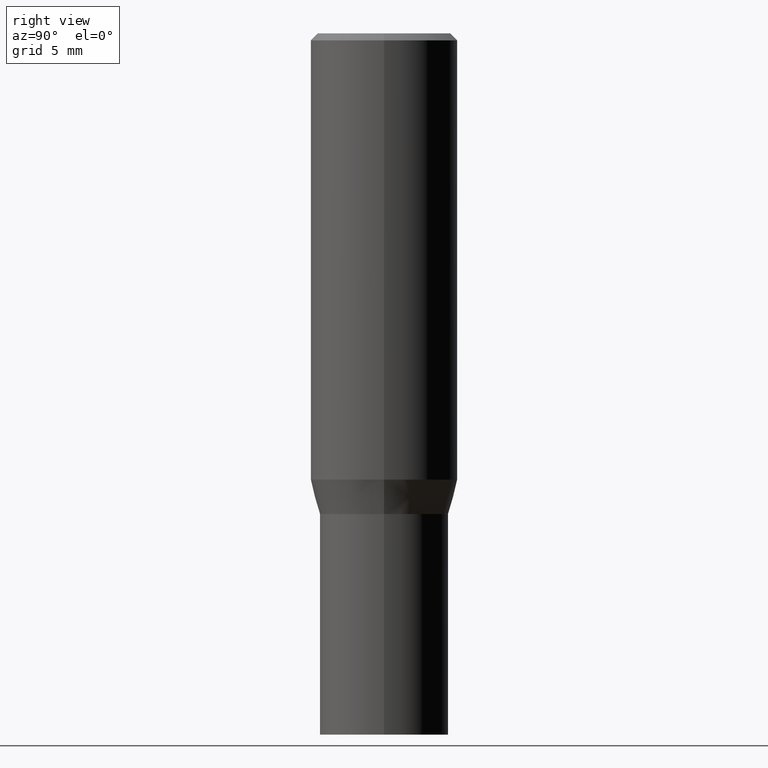
[diagram: clean part render]
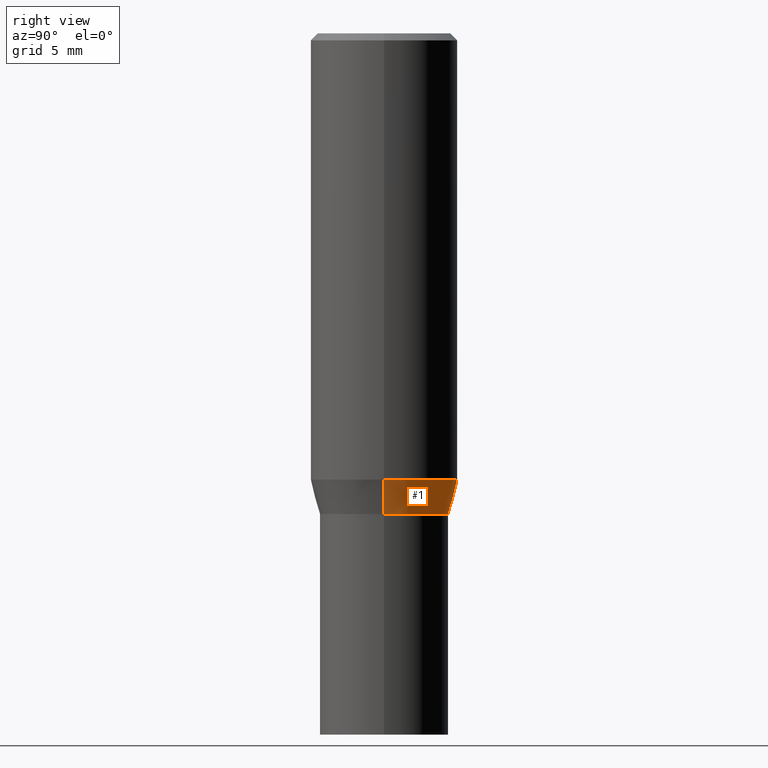
[diagram: same view with one face highlighted and labeled with its STEP entity id]
A machine part, right view. The second image highlights one B-rep face of the part: STEP entity #1.
In plain terms, the highlighted conical surface has half-angle 15 deg.
Its self-contained STEP definition (entity closure, byte-faithful):
#1 = ADVANCED_FACE ( 'NONE', ( #315 ), #323, .T. ) ;
#15 = ORIENTED_EDGE ( 'NONE', *, *, #170, .T. ) ;
#25 = DIRECTION ( 'NONE',  ( -2.445468806185136597E-29, 3.491481338843145583E-15, 1.000000000000000000 ) ) ;
#37 = CARTESIAN_POINT ( 'NONE',  ( 2.334147640248070557E-29, -3.332544217051005165E-15, -0.9544785990908941642 ) ) ;
#71 = AXIS2_PLACEMENT_3D ( 'NONE', #447, #132, #436 ) ;
#74 = CARTESIAN_POINT ( 'NONE',  ( 0.1575000000000000011, -4.432360838786593040E-15, -0.9544785990908941642 ) ) ;
#78 = CIRCLE ( 'NONE', #356, 0.1378000000000002001 ) ;
#85 = CARTESIAN_POINT ( 'NONE',  ( -0.1575000000000000011, -2.213439408228846773E-15, -0.9544785990908941642 ) ) ;
#94 = VERTEX_POINT ( 'NONE', #85 ) ;
#108 = DIRECTION ( 'NONE',  ( -2.445468806185136597E-29, 3.491481338843145583E-15, 1.000000000000000000 ) ) ;
#128 = ORIENTED_EDGE ( 'NONE', *, *, #141, .F. ) ;
#132 = DIRECTION ( 'NONE',  ( -2.445468806185136597E-29, 3.491481338843145583E-15, 1.000000000000000000 ) ) ;
#141 = EDGE_CURVE ( 'NONE', #454, #204, #425, .T. ) ;
#148 = DIRECTION ( 'NONE',  ( -0.2588190451025213501, 5.211531920934551042E-15, 0.9659258262890682012 ) ) ;
#170 = EDGE_CURVE ( 'NONE', #449, #94, #213, .T. ) ;
#172 = EDGE_LOOP ( 'NONE', ( #385, #15, #320, #128 ) ) ;
#176 = CARTESIAN_POINT ( 'NONE',  ( 2.513941932758320587E-29, -3.589242816330753332E-15, -1.028000000000000025 ) ) ;
#190 = CARTESIAN_POINT ( 'NONE',  ( -0.1378000000000002001, -2.411777167341090313E-15, -1.028000000000000025 ) ) ;
#204 = VERTEX_POINT ( 'NONE', #74 ) ;
#213 = LINE ( 'NONE', #358, #291 ) ;
#248 = EDGE_CURVE ( 'NONE', #204, #94, #250, .T. ) ;
#249 = CARTESIAN_POINT ( 'NONE',  ( 0.1378000000000002001, -4.551495073315923176E-15, -1.028000000000000025 ) ) ;
#250 = CIRCLE ( 'NONE', #463, 0.1575000000000000011 ) ;
#254 = EDGE_CURVE ( 'NONE', #454, #449, #78, .T. ) ;
#291 = VECTOR ( 'NONE', #148, 39.37007874015747433 ) ;
#298 = CARTESIAN_POINT ( 'NONE',  ( 0.1378000000000002001, -4.551495073315923176E-15, -1.028000000000000025 ) ) ;
#315 = FACE_OUTER_BOUND ( 'NONE', #172, .T. ) ;
#320 = ORIENTED_EDGE ( 'NONE', *, *, #248, .F. ) ;
#321 = DIRECTION ( 'NONE',  ( 1.000000000000000000, -6.982962677686270655E-15, 0.000000000000000000 ) ) ;
#323 = CONICAL_SURFACE ( 'NONE', #71, 0.1378000000000002001, 0.2617993877991500740 ) ;
#331 = DIRECTION ( 'NONE',  ( 1.000000000000000000, -6.982962677686264344E-15, 0.000000000000000000 ) ) ;
#356 = AXIS2_PLACEMENT_3D ( 'NONE', #176, #108, #321 ) ;
#358 = CARTESIAN_POINT ( 'NONE',  ( -0.1378000000000002001, -2.610114926453333854E-15, -1.028000000000000025 ) ) ;
#385 = ORIENTED_EDGE ( 'NONE', *, *, #254, .T. ) ;
#409 = VECTOR ( 'NONE', #419, 39.37007874015747433 ) ;
#419 = DIRECTION ( 'NONE',  ( 0.2588190451025213501, 1.565188264969621968E-15, 0.9659258262890682012 ) ) ;
#425 = LINE ( 'NONE', #249, #409 ) ;
#436 = DIRECTION ( 'NONE',  ( 1.000000000000000000, -6.982962677686270655E-15, 0.000000000000000000 ) ) ;
#447 = CARTESIAN_POINT ( 'NONE',  ( 2.513941932758320587E-29, -3.589242816330753332E-15, -1.028000000000000025 ) ) ;
#449 = VERTEX_POINT ( 'NONE', #190 ) ;
#454 = VERTEX_POINT ( 'NONE', #298 ) ;
#463 = AXIS2_PLACEMENT_3D ( 'NONE', #37, #25, #331 ) ;